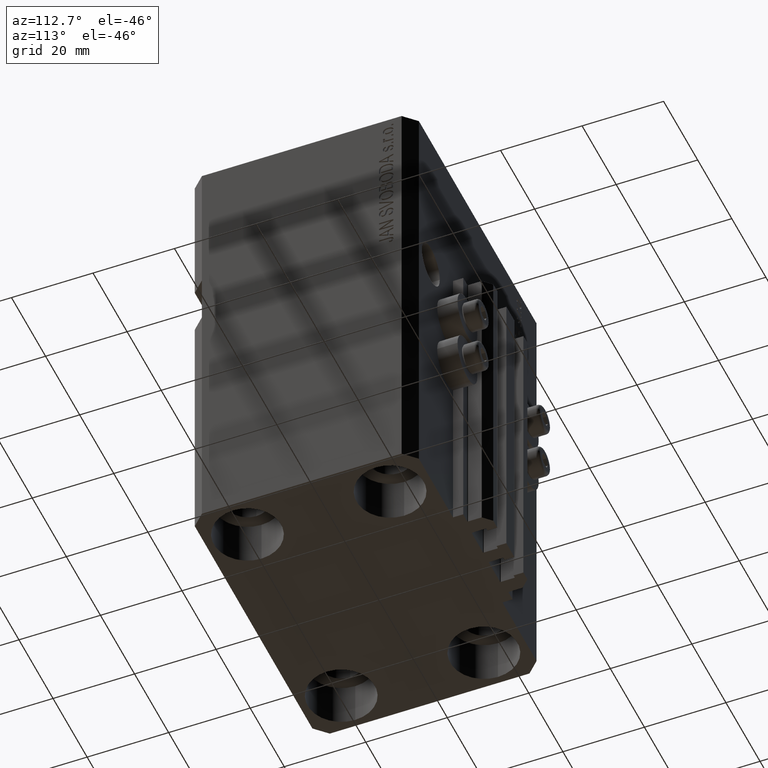
[diagram: clean part render]
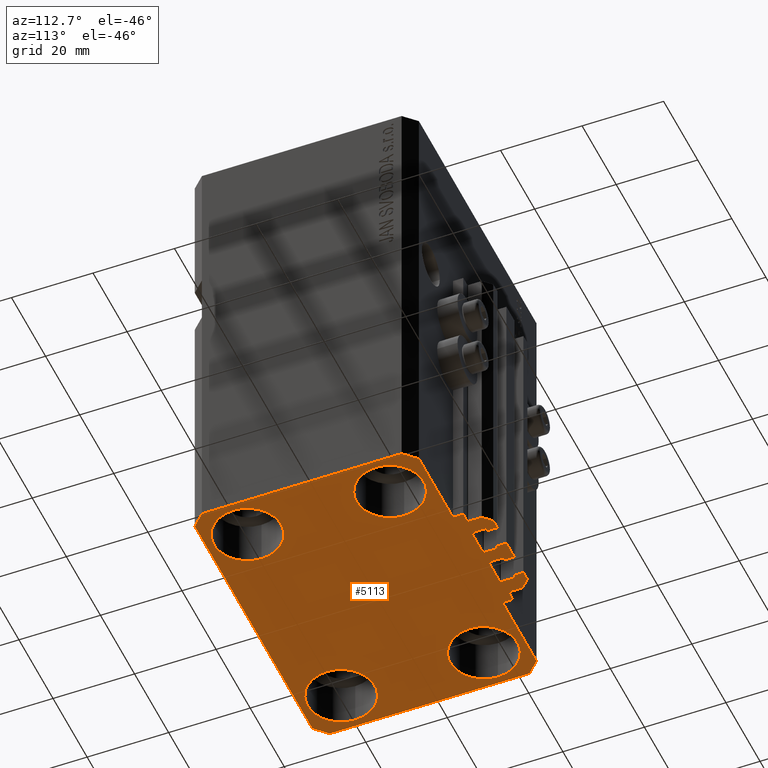
[diagram: same view with one face highlighted and labeled with its STEP entity id]
A machine part, auxiliary view. The second image highlights one B-rep face of the part: STEP entity #5113.
In plain terms, the highlighted planar face has unit normal (0, 0, 1).
Its self-contained STEP definition (entity closure, byte-faithful):
#176 = VECTOR ( 'NONE', #3607, 1000.000000000000000 ) ;
#180 = DIRECTION ( 'NONE',  ( 0.000000000000000000, 0.000000000000000000, 1.000000000000000000 ) ) ;
#183 = EDGE_CURVE ( 'NONE', #14250, #20246, #20913, .T. ) ;
#251 = VERTEX_POINT ( 'NONE', #27939 ) ;
#257 = VERTEX_POINT ( 'NONE', #7116 ) ;
#273 = LINE ( 'NONE', #22485, #43944 ) ;
#282 = DIRECTION ( 'NONE',  ( 0.000000000000000000, 0.000000000000000000, 1.000000000000000000 ) ) ;
#484 = CARTESIAN_POINT ( 'NONE',  ( 8.200000000000001066, 32.90000000000001990, -110.0000000000000000 ) ) ;
#703 = LINE ( 'NONE', #31836, #26669 ) ;
#898 = CARTESIAN_POINT ( 'NONE',  ( 34.50000000000056843, 27.50000000000000000, -110.0000000000000000 ) ) ;
#914 = CARTESIAN_POINT ( 'NONE',  ( 37.50000000000051870, 24.49999999999995381, -110.0000000000000000 ) ) ;
#983 = DIRECTION ( 'NONE',  ( 0.000000000000000000, 0.000000000000000000, 1.000000000000000000 ) ) ;
#1113 = AXIS2_PLACEMENT_3D ( 'NONE', #14033, #20372, #14269 ) ;
#1428 = EDGE_LOOP ( 'NONE', ( #32173, #6984, #32475, #24453, #38293, #30345, #13601, #33989, #5459, #32632, #19243, #2872, #23999, #28841, #43941, #33738, #28150, #46293, #33531, #22088, #12504, #35702, #34096, #33642, #41162, #29534, #10912, #34484, #4089, #33579, #37208, #2524, #23015, #3907, #45671, #44167, #7066, #25585, #15783, #35386, #9589, #7776, #5691, #36114 ) ) ;
#1752 = DIRECTION ( 'NONE',  ( -5.421010862427496532E-16, -1.000000000000000000, 0.000000000000000000 ) ) ;
#1914 = ORIENTED_EDGE ( 'NONE', *, *, #19805, .T. ) ;
#2065 = VERTEX_POINT ( 'NONE', #45881 ) ;
#2075 = EDGE_LOOP ( 'NONE', ( #32900, #17325 ) ) ;
#2281 = CIRCLE ( 'NONE', #10463, 0.2000000000000016209 ) ;
#2307 = CARTESIAN_POINT ( 'NONE',  ( 7.649999999999998579, 33.10000000000001563, -110.0000000000000000 ) ) ;
#2354 = LINE ( 'NONE', #34159, #31041 ) ;
#2364 = VERTEX_POINT ( 'NONE', #18371 ) ;
#2472 = DIRECTION ( 'NONE',  ( 0.000000000000000000, 0.000000000000000000, 1.000000000000000000 ) ) ;
#2494 = CARTESIAN_POINT ( 'NONE',  ( -7.650000000000000355, 33.09999999999999432, -110.0000000000000000 ) ) ;
#2524 = ORIENTED_EDGE ( 'NONE', *, *, #29602, .T. ) ;
#2543 = DIRECTION ( 'NONE',  ( -0.000000000000000000, -0.000000000000000000, 1.000000000000000000 ) ) ;
#2699 = CARTESIAN_POINT ( 'NONE',  ( 12.20000000000000107, 30.20000000000002061, -110.0000000000000000 ) ) ;
#2801 = CARTESIAN_POINT ( 'NONE',  ( -10.00000000000000000, 35.50000000000000000, -110.0000000000000000 ) ) ;
#2872 = ORIENTED_EDGE ( 'NONE', *, *, #24934, .T. ) ;
#3248 = VERTEX_POINT ( 'NONE', #17284 ) ;
#3310 = CIRCLE ( 'NONE', #14488, 8.249999999999992895 ) ;
#3607 = DIRECTION ( 'NONE',  ( 1.000000000000000000, 0.000000000000000000, 0.000000000000000000 ) ) ;
#3829 = CIRCLE ( 'NONE', #19515, 0.2000000000000031197 ) ;
#3907 = ORIENTED_EDGE ( 'NONE', *, *, #19569, .T. ) ;
#3914 = CARTESIAN_POINT ( 'NONE',  ( 12.20000000000000107, 30.00000000000002487, -110.0000000000000000 ) ) ;
#3987 = VERTEX_POINT ( 'NONE', #8670 ) ;
#4016 = VERTEX_POINT ( 'NONE', #24107 ) ;
#4089 = ORIENTED_EDGE ( 'NONE', *, *, #21705, .F. ) ;
#4103 = DIRECTION ( 'NONE',  ( -1.000000000000000000, -1.084202172485504828E-15, 0.000000000000000000 ) ) ;
#4216 = CARTESIAN_POINT ( 'NONE',  ( 35.75000000000000711, -17.50000000000000000, -110.0000000000000000 ) ) ;
#4351 = EDGE_CURVE ( 'NONE', #29172, #16520, #23480, .T. ) ;
#4435 = VECTOR ( 'NONE', #26506, 1000.000000000000000 ) ;
#4685 = DIRECTION ( 'NONE',  ( 0.000000000000000000, 0.000000000000000000, 1.000000000000000000 ) ) ;
#4904 = CARTESIAN_POINT ( 'NONE',  ( 19.25000000000000000, -17.50000000000000000, -110.0000000000000000 ) ) ;
#4983 = CARTESIAN_POINT ( 'NONE',  ( -12.20000000000000107, 29.99999999999998934, -110.0000000000000000 ) ) ;
#5113 = ADVANCED_FACE ( 'NONE', ( #13804, #24806, #17772, #31374, #35332 ), #7024, .F. ) ;
#5228 = CIRCLE ( 'NONE', #24662, 0.2000000000000005107 ) ;
#5379 = CARTESIAN_POINT ( 'NONE',  ( -34.49999999999999289, 27.50000000000000000, -110.0000000000000000 ) ) ;
#5459 = ORIENTED_EDGE ( 'NONE', *, *, #10492, .F. ) ;
#5492 = EDGE_CURVE ( 'NONE', #6683, #9633, #39011, .T. ) ;
#5544 = VECTOR ( 'NONE', #13368, 1000.000000000000000 ) ;
#5571 = CARTESIAN_POINT ( 'NONE',  ( 34.49999999999999289, -27.49999999999999645, -110.0000000000000000 ) ) ;
#5572 = DIRECTION ( 'NONE',  ( 1.000000000000000000, 0.000000000000000000, 0.000000000000000000 ) ) ;
#5675 = AXIS2_PLACEMENT_3D ( 'NONE', #41978, #34734, #24194 ) ;
#5691 = ORIENTED_EDGE ( 'NONE', *, *, #8085, .F. ) ;
#5836 = VERTEX_POINT ( 'NONE', #2494 ) ;
#5956 = CARTESIAN_POINT ( 'NONE',  ( -12.00000000000000000, 33.49999999999998579, -110.0000000000000000 ) ) ;
#5963 = CARTESIAN_POINT ( 'NONE',  ( -14.50000000000000000, 27.50000000000000355, -110.0000000000000000 ) ) ;
#5973 = DIRECTION ( 'NONE',  ( 1.000000000000000000, 0.000000000000000000, 0.000000000000000000 ) ) ;
#6028 = EDGE_CURVE ( 'NONE', #37986, #9523, #21307, .T. ) ;
#6158 = DIRECTION ( 'NONE',  ( 1.000000000000000000, 1.261617073437673039E-14, 0.000000000000000000 ) ) ;
#6391 = EDGE_CURVE ( 'NONE', #5836, #33766, #41383, .T. ) ;
#6566 = VECTOR ( 'NONE', #14416, 1000.000000000000000 ) ;
#6659 = EDGE_CURVE ( 'NONE', #20246, #31176, #45079, .T. ) ;
#6683 = VERTEX_POINT ( 'NONE', #19795 ) ;
#6796 = CARTESIAN_POINT ( 'NONE',  ( 8.199999999999999289, 29.50000000000000711, -110.0000000000000000 ) ) ;
#6808 = CARTESIAN_POINT ( 'NONE',  ( -1.600000000000000533, 32.90000000000001279, -110.0000000000000000 ) ) ;
#6895 = EDGE_CURVE ( 'NONE', #19889, #16447, #13624, .T. ) ;
#6977 = AXIS2_PLACEMENT_3D ( 'NONE', #39376, #21601, #43115 ) ;
#6984 = ORIENTED_EDGE ( 'NONE', *, *, #28135, .F. ) ;
#7024 = PLANE ( 'NONE',  #1113 ) ;
#7066 = ORIENTED_EDGE ( 'NONE', *, *, #21090, .F. ) ;
#7116 = CARTESIAN_POINT ( 'NONE',  ( -12.20000000000000107, 29.99999999999998934, -110.0000000000000000 ) ) ;
#7182 = DIRECTION ( 'NONE',  ( -1.000000000000000000, 0.000000000000000000, 0.000000000000000000 ) ) ;
#7776 = ORIENTED_EDGE ( 'NONE', *, *, #24505, .T. ) ;
#7879 = EDGE_CURVE ( 'NONE', #9523, #37986, #24461, .T. ) ;
#8028 = CARTESIAN_POINT ( 'NONE',  ( 1.800000000000000933, 29.50000000000000000, -110.0000000000000000 ) ) ;
#8085 = EDGE_CURVE ( 'NONE', #8854, #33024, #8814, .T. ) ;
#8472 = LINE ( 'NONE', #33751, #38333 ) ;
#8631 = DIRECTION ( 'NONE',  ( 0.000000000000000000, 1.000000000000000000, 0.000000000000000000 ) ) ;
#8670 = CARTESIAN_POINT ( 'NONE',  ( -8.399999999999996803, 29.69999999999999929, -110.0000000000000000 ) ) ;
#8688 = EDGE_CURVE ( 'NONE', #44055, #8854, #8472, .T. ) ;
#8696 = VECTOR ( 'NONE', #44709, 1000.000000000000000 ) ;
#8749 = CARTESIAN_POINT ( 'NONE',  ( 8.400000000000000355, 32.90000000000001990, -110.0000000000000000 ) ) ;
#8814 = LINE ( 'NONE', #37364, #21134 ) ;
#8854 = VERTEX_POINT ( 'NONE', #25747 ) ;
#9044 = CARTESIAN_POINT ( 'NONE',  ( 34.49999999999999289, -27.49999999999999645, -110.0000000000000000 ) ) ;
#9185 = LINE ( 'NONE', #23464, #40135 ) ;
#9523 = VERTEX_POINT ( 'NONE', #15963 ) ;
#9540 = AXIS2_PLACEMENT_3D ( 'NONE', #29060, #983, #39120 ) ;
#9576 = CARTESIAN_POINT ( 'NONE',  ( 27.49999999999999645, 17.50000000000001066, -110.0000000000000000 ) ) ;
#9589 = ORIENTED_EDGE ( 'NONE', *, *, #19109, .F. ) ;
#9633 = VERTEX_POINT ( 'NONE', #13150 ) ;
#9689 = LINE ( 'NONE', #5956, #23734 ) ;
#9794 = ORIENTED_EDGE ( 'NONE', *, *, #6028, .T. ) ;
#9984 = CARTESIAN_POINT ( 'NONE',  ( 12.00000000000000178, 30.20000000000002061, -110.0000000000000000 ) ) ;
#10230 = VECTOR ( 'NONE', #36407, 1000.000000000000000 ) ;
#10235 = CIRCLE ( 'NONE', #5675, 8.250000000000000000 ) ;
#10255 = EDGE_CURVE ( 'NONE', #16520, #29172, #27156, .T. ) ;
#10329 = AXIS2_PLACEMENT_3D ( 'NONE', #21568, #282, #5572 ) ;
#10463 = AXIS2_PLACEMENT_3D ( 'NONE', #42649, #13641, #46165 ) ;
#10492 = EDGE_CURVE ( 'NONE', #31876, #14197, #42829, .T. ) ;
#10510 = DIRECTION ( 'NONE',  ( -0.7071067811865471286, -0.7071067811865479058, 0.000000000000000000 ) ) ;
#10570 = VERTEX_POINT ( 'NONE', #18481 ) ;
#10604 = EDGE_CURVE ( 'NONE', #44377, #27275, #25524, .T. ) ;
#10612 = EDGE_CURVE ( 'NONE', #10570, #3248, #27951, .T. ) ;
#10617 = EDGE_CURVE ( 'NONE', #16930, #5836, #29263, .T. ) ;
#10668 = EDGE_CURVE ( 'NONE', #25658, #4016, #3310, .T. ) ;
#10912 = ORIENTED_EDGE ( 'NONE', *, *, #38690, .T. ) ;
#10951 = VERTEX_POINT ( 'NONE', #44627 ) ;
#11164 = CARTESIAN_POINT ( 'NONE',  ( -8.199999999999997513, 33.09999999999998721, -110.0000000000000000 ) ) ;
#11316 = CARTESIAN_POINT ( 'NONE',  ( 14.49999999999999645, 27.50000000000000355, -110.0000000000000000 ) ) ;
#11374 = CARTESIAN_POINT ( 'NONE',  ( -7.650000000000000355, 35.50000000000000000, -110.0000000000000000 ) ) ;
#11469 = DIRECTION ( 'NONE',  ( 0.000000000000000000, -1.000000000000000000, 0.000000000000000000 ) ) ;
#11601 = VERTEX_POINT ( 'NONE', #2801 ) ;
#12314 = VECTOR ( 'NONE', #24281, 1000.000000000000000 ) ;
#12504 = ORIENTED_EDGE ( 'NONE', *, *, #14252, .F. ) ;
#12626 = CARTESIAN_POINT ( 'NONE',  ( -34.49999999999998579, -27.49999999999999645, -110.0000000000000000 ) ) ;
#12804 = EDGE_CURVE ( 'NONE', #33477, #18635, #19282, .T. ) ;
#13039 = DIRECTION ( 'NONE',  ( -5.256737805990334897E-16, 1.000000000000000000, 0.000000000000000000 ) ) ;
#13150 = CARTESIAN_POINT ( 'NONE',  ( 1.600000000000000533, 32.90000000000001279, -110.0000000000000000 ) ) ;
#13317 = CIRCLE ( 'NONE', #10329, 0.2000000000000005107 ) ;
#13368 = DIRECTION ( 'NONE',  ( -1.000000000000000000, 0.000000000000000000, 0.000000000000000000 ) ) ;
#13601 = ORIENTED_EDGE ( 'NONE', *, *, #10604, .F. ) ;
#13624 = LINE ( 'NONE', #13851, #39134 ) ;
#13641 = DIRECTION ( 'NONE',  ( 0.000000000000000000, 0.000000000000000000, 1.000000000000000000 ) ) ;
#13804 = FACE_BOUND ( 'NONE', #39448, .T. ) ;
#13851 = CARTESIAN_POINT ( 'NONE',  ( -2.350000000000003197, 33.10000000000000853, -110.0000000000000000 ) ) ;
#13968 = DIRECTION ( 'NONE',  ( 0.000000000000000000, 0.000000000000000000, 1.000000000000000000 ) ) ;
#14020 = LINE ( 'NONE', #42566, #38620 ) ;
#14033 = CARTESIAN_POINT ( 'NONE',  ( 0.000000000000000000, 0.000000000000000000, -110.0000000000000000 ) ) ;
#14067 = DIRECTION ( 'NONE',  ( -1.084202172485505223E-15, 1.000000000000000000, 0.000000000000000000 ) ) ;
#14197 = VERTEX_POINT ( 'NONE', #5379 ) ;
#14250 = VERTEX_POINT ( 'NONE', #12626 ) ;
#14252 = EDGE_CURVE ( 'NONE', #44202, #33964, #2354, .T. ) ;
#14269 = DIRECTION ( 'NONE',  ( 1.000000000000000000, 0.000000000000000000, -0.000000000000000000 ) ) ;
#14416 = DIRECTION ( 'NONE',  ( 0.000000000000000000, 1.000000000000000000, 0.000000000000000000 ) ) ;
#14433 = CARTESIAN_POINT ( 'NONE',  ( -8.199999999999997513, 32.89999999999999147, -110.0000000000000000 ) ) ;
#14474 = VERTEX_POINT ( 'NONE', #898 ) ;
#14488 = AXIS2_PLACEMENT_3D ( 'NONE', #9576, #19631, #27128 ) ;
#14502 = DIRECTION ( 'NONE',  ( -1.000000000000000000, 0.000000000000000000, 0.000000000000000000 ) ) ;
#14677 = CARTESIAN_POINT ( 'NONE',  ( -27.50000000000000355, -17.50000000000000000, -110.0000000000000000 ) ) ;
#14826 = ORIENTED_EDGE ( 'NONE', *, *, #10668, .T. ) ;
#14959 = DIRECTION ( 'NONE',  ( 1.076236605503979380E-14, 1.000000000000000000, 0.000000000000000000 ) ) ;
#14976 = DIRECTION ( 'NONE',  ( 0.000000000000000000, 0.000000000000000000, 1.000000000000000000 ) ) ;
#15071 = DIRECTION ( 'NONE',  ( 1.000000000000000000, 0.000000000000000000, 0.000000000000000000 ) ) ;
#15574 = EDGE_CURVE ( 'NONE', #26339, #19889, #38380, .T. ) ;
#15783 = ORIENTED_EDGE ( 'NONE', *, *, #20752, .F. ) ;
#15963 = CARTESIAN_POINT ( 'NONE',  ( -19.25000000000000355, -17.50000000000000000, -110.0000000000000000 ) ) ;
#16064 = DIRECTION ( 'NONE',  ( 0.7071067811865474617, 0.7071067811865474617, 0.000000000000000000 ) ) ;
#16277 = CARTESIAN_POINT ( 'NONE',  ( 7.649999999999998579, 35.50000000000001421, -110.0000000000000000 ) ) ;
#16427 = EDGE_CURVE ( 'NONE', #42382, #9633, #39332, .T. ) ;
#16447 = VERTEX_POINT ( 'NONE', #24815 ) ;
#16520 = VERTEX_POINT ( 'NONE', #4904 ) ;
#16798 = AXIS2_PLACEMENT_3D ( 'NONE', #37521, #26535, #43857 ) ;
#16930 = VERTEX_POINT ( 'NONE', #11164 ) ;
#17208 = EDGE_LOOP ( 'NONE', ( #27542, #14826 ) ) ;
#17284 = CARTESIAN_POINT ( 'NONE',  ( 8.200000000000001066, 33.10000000000000853, -110.0000000000000000 ) ) ;
#17325 = ORIENTED_EDGE ( 'NONE', *, *, #4351, .T. ) ;
#17570 = LINE ( 'NONE', #31860, #20625 ) ;
#17685 = VECTOR ( 'NONE', #35348, 1000.000000000000000 ) ;
#17686 = EDGE_CURVE ( 'NONE', #2364, #34649, #24585, .T. ) ;
#17772 = FACE_BOUND ( 'NONE', #17208, .T. ) ;
#17952 = LINE ( 'NONE', #18182, #20885 ) ;
#17991 = CARTESIAN_POINT ( 'NONE',  ( -8.400000000000000355, 32.89999999999999858, -110.0000000000000000 ) ) ;
#18182 = CARTESIAN_POINT ( 'NONE',  ( -37.49999999999999289, -24.50000000000000000, -110.0000000000000000 ) ) ;
#18220 = VECTOR ( 'NONE', #16064, 1000.000000000000114 ) ;
#18371 = CARTESIAN_POINT ( 'NONE',  ( -1.599999999999997868, 32.90000000000001279, -110.0000000000000000 ) ) ;
#18386 = LINE ( 'NONE', #39688, #10230 ) ;
#18481 = CARTESIAN_POINT ( 'NONE',  ( 8.399999999999998579, 32.90000000000001990, -110.0000000000000000 ) ) ;
#18497 = EDGE_CURVE ( 'NONE', #32039, #251, #10235, .T. ) ;
#18635 = VERTEX_POINT ( 'NONE', #8028 ) ;
#18717 = DIRECTION ( 'NONE',  ( 0.000000000000000000, -1.000000000000000000, 0.000000000000000000 ) ) ;
#18858 = EDGE_CURVE ( 'NONE', #11601, #38003, #45212, .T. ) ;
#18955 = EDGE_CURVE ( 'NONE', #3987, #35815, #17570, .T. ) ;
#19109 = EDGE_CURVE ( 'NONE', #10951, #28803, #34570, .T. ) ;
#19243 = ORIENTED_EDGE ( 'NONE', *, *, #42785, .F. ) ;
#19282 = LINE ( 'NONE', #36147, #39972 ) ;
#19515 = AXIS2_PLACEMENT_3D ( 'NONE', #43845, #13968, #15071 ) ;
#19569 = EDGE_CURVE ( 'NONE', #33477, #20970, #39299, .T. ) ;
#19625 = CARTESIAN_POINT ( 'NONE',  ( -14.50000000000000000, 29.99999999999999289, -110.0000000000000000 ) ) ;
#19631 = DIRECTION ( 'NONE',  ( -0.000000000000000000, -0.000000000000000000, 1.000000000000000000 ) ) ;
#19795 = CARTESIAN_POINT ( 'NONE',  ( 1.599999999999999645, 29.69999999999999929, -110.0000000000000000 ) ) ;
#19805 = EDGE_CURVE ( 'NONE', #251, #32039, #27351, .T. ) ;
#19848 = CARTESIAN_POINT ( 'NONE',  ( -7.650000000000000355, 35.50000000000000000, -110.0000000000000000 ) ) ;
#19889 = VERTEX_POINT ( 'NONE', #23872 ) ;
#20122 = VERTEX_POINT ( 'NONE', #914 ) ;
#20246 = VERTEX_POINT ( 'NONE', #5571 ) ;
#20372 = DIRECTION ( 'NONE',  ( 0.000000000000000000, 0.000000000000000000, 1.000000000000000000 ) ) ;
#20625 = VECTOR ( 'NONE', #14067, 1000.000000000000000 ) ;
#20678 = CARTESIAN_POINT ( 'NONE',  ( -34.49999999999998579, -27.49999999999999645, -110.0000000000000000 ) ) ;
#20752 = EDGE_CURVE ( 'NONE', #38761, #44914, #31365, .T. ) ;
#20835 = DIRECTION ( 'NONE',  ( 0.000000000000000000, 0.000000000000000000, 1.000000000000000000 ) ) ;
#20853 = VECTOR ( 'NONE', #14959, 1000.000000000000000 ) ;
#20885 = VECTOR ( 'NONE', #40407, 1000.000000000000000 ) ;
#20913 = LINE ( 'NONE', #20678, #176 ) ;
#20932 = CARTESIAN_POINT ( 'NONE',  ( 2.349999999999999645, 35.50000000000001421, -110.0000000000000000 ) ) ;
#20970 = VERTEX_POINT ( 'NONE', #29680 ) ;
#21068 = DIRECTION ( 'NONE',  ( 1.000000000000000000, 0.000000000000000000, 0.000000000000000000 ) ) ;
#21090 = EDGE_CURVE ( 'NONE', #21353, #3248, #38075, .T. ) ;
#21134 = VECTOR ( 'NONE', #23554, 1000.000000000000000 ) ;
#21205 = VECTOR ( 'NONE', #22697, 1000.000000000000000 ) ;
#21207 = EDGE_CURVE ( 'NONE', #44914, #21353, #18386, .T. ) ;
#21307 = CIRCLE ( 'NONE', #16798, 8.250000000000000000 ) ;
#21353 = VERTEX_POINT ( 'NONE', #43896 ) ;
#21500 = CIRCLE ( 'NONE', #43172, 8.249999999999992895 ) ;
#21568 = CARTESIAN_POINT ( 'NONE',  ( -12.20000000000000107, 30.19999999999999218, -110.0000000000000000 ) ) ;
#21601 = DIRECTION ( 'NONE',  ( -0.000000000000000000, -0.000000000000000000, 1.000000000000000000 ) ) ;
#21705 = EDGE_CURVE ( 'NONE', #42382, #2065, #9185, .T. ) ;
#22088 = ORIENTED_EDGE ( 'NONE', *, *, #22616, .T. ) ;
#22091 = EDGE_CURVE ( 'NONE', #14197, #44377, #14020, .T. ) ;
#22172 = DIRECTION ( 'NONE',  ( 1.000000000000000000, 0.000000000000000000, 0.000000000000000000 ) ) ;
#22188 = ORIENTED_EDGE ( 'NONE', *, *, #18497, .T. ) ;
#22232 = VECTOR ( 'NONE', #38451, 1000.000000000000000 ) ;
#22485 = CARTESIAN_POINT ( 'NONE',  ( -14.50000000000000000, 29.99999999999999289, -110.0000000000000000 ) ) ;
#22616 = EDGE_CURVE ( 'NONE', #3987, #33964, #43141, .T. ) ;
#22697 = DIRECTION ( 'NONE',  ( 1.000000000000000000, 1.261617073437685503E-14, 0.000000000000000000 ) ) ;
#23001 = DIRECTION ( 'NONE',  ( 0.000000000000000000, 0.000000000000000000, 1.000000000000000000 ) ) ;
#23015 = ORIENTED_EDGE ( 'NONE', *, *, #12804, .F. ) ;
#23307 = EDGE_CURVE ( 'NONE', #4016, #25658, #21500, .T. ) ;
#23464 = CARTESIAN_POINT ( 'NONE',  ( 1.800000000000000933, 33.10000000000001563, -110.0000000000000000 ) ) ;
#23480 = CIRCLE ( 'NONE', #42878, 8.250000000000000000 ) ;
#23554 = DIRECTION ( 'NONE',  ( -1.000000000000000000, 0.000000000000000000, 0.000000000000000000 ) ) ;
#23734 = VECTOR ( 'NONE', #33578, 1000.000000000000000 ) ;
#23768 = EDGE_CURVE ( 'NONE', #28888, #31876, #273, .T. ) ;
#23872 = CARTESIAN_POINT ( 'NONE',  ( -2.350000000000003197, 33.10000000000000853, -110.0000000000000000 ) ) ;
#23940 = VECTOR ( 'NONE', #7182, 1000.000000000000000 ) ;
#23999 = ORIENTED_EDGE ( 'NONE', *, *, #39947, .F. ) ;
#24107 = CARTESIAN_POINT ( 'NONE',  ( 19.25000000000000000, 17.50000000000001066, -110.0000000000000000 ) ) ;
#24194 = DIRECTION ( 'NONE',  ( 1.000000000000000000, 0.000000000000000000, 0.000000000000000000 ) ) ;
#24208 = EDGE_CURVE ( 'NONE', #2065, #26463, #32212, .T. ) ;
#24281 = DIRECTION ( 'NONE',  ( 0.000000000000000000, 1.000000000000000000, 0.000000000000000000 ) ) ;
#24301 = CARTESIAN_POINT ( 'NONE',  ( 37.49999999999999289, -24.50000000000000000, -110.0000000000000000 ) ) ;
#24340 = DIRECTION ( 'NONE',  ( 1.807003620809174632E-16, -1.000000000000000000, 0.000000000000000000 ) ) ;
#24453 = ORIENTED_EDGE ( 'NONE', *, *, #6659, .F. ) ;
#24461 = CIRCLE ( 'NONE', #30464, 8.250000000000000000 ) ;
#24505 = EDGE_CURVE ( 'NONE', #10951, #33024, #26775, .T. ) ;
#24575 = CARTESIAN_POINT ( 'NONE',  ( -2.350000000000003642, 35.50000000000001421, -110.0000000000000000 ) ) ;
#24585 = LINE ( 'NONE', #6808, #17685 ) ;
#24662 = AXIS2_PLACEMENT_3D ( 'NONE', #14433, #180, #35966 ) ;
#24793 = ORIENTED_EDGE ( 'NONE', *, *, #7879, .T. ) ;
#24806 = FACE_BOUND ( 'NONE', #2075, .T. ) ;
#24815 = CARTESIAN_POINT ( 'NONE',  ( -1.800000000000000933, 33.10000000000001563, -110.0000000000000000 ) ) ;
#24934 = EDGE_CURVE ( 'NONE', #257, #41621, #13317, .T. ) ;
#25060 = CARTESIAN_POINT ( 'NONE',  ( 34.50000000000056843, 27.50000000000000000, -110.0000000000000000 ) ) ;
#25414 = VECTOR ( 'NONE', #1752, 1000.000000000000000 ) ;
#25457 = DIRECTION ( 'NONE',  ( -0.000000000000000000, -0.000000000000000000, 1.000000000000000000 ) ) ;
#25524 = LINE ( 'NONE', #36500, #31702 ) ;
#25585 = ORIENTED_EDGE ( 'NONE', *, *, #21207, .F. ) ;
#25654 = CARTESIAN_POINT ( 'NONE',  ( 2.349999999999999645, 33.10000000000000853, -110.0000000000000000 ) ) ;
#25658 = VERTEX_POINT ( 'NONE', #28423 ) ;
#25747 = CARTESIAN_POINT ( 'NONE',  ( 14.49999999999999645, 30.00000000000002487, -110.0000000000000000 ) ) ;
#25851 = VECTOR ( 'NONE', #24340, 1000.000000000000000 ) ;
#25913 = VECTOR ( 'NONE', #37848, 1000.000000000000000 ) ;
#25942 = AXIS2_PLACEMENT_3D ( 'NONE', #36730, #4685, #44674 ) ;
#26339 = VERTEX_POINT ( 'NONE', #30314 ) ;
#26378 = LINE ( 'NONE', #29888, #34371 ) ;
#26463 = VERTEX_POINT ( 'NONE', #20932 ) ;
#26506 = DIRECTION ( 'NONE',  ( -1.000000000000000000, 1.508455196501571429E-15, 0.000000000000000000 ) ) ;
#26524 = VECTOR ( 'NONE', #8631, 1000.000000000000000 ) ;
#26535 = DIRECTION ( 'NONE',  ( -0.000000000000000000, -0.000000000000000000, 1.000000000000000000 ) ) ;
#26543 = CARTESIAN_POINT ( 'NONE',  ( -35.75000000000000711, -17.50000000000000000, -110.0000000000000000 ) ) ;
#26609 = AXIS2_PLACEMENT_3D ( 'NONE', #41415, #33943, #34635 ) ;
#26669 = VECTOR ( 'NONE', #14502, 1000.000000000000000 ) ;
#26767 = VECTOR ( 'NONE', #35709, 1000.000000000000114 ) ;
#26775 = CIRCLE ( 'NONE', #29789, 0.1999999999999987899 ) ;
#27039 = EDGE_CURVE ( 'NONE', #31176, #20122, #32988, .T. ) ;
#27128 = DIRECTION ( 'NONE',  ( 1.000000000000000000, 0.000000000000000000, 0.000000000000000000 ) ) ;
#27156 = CIRCLE ( 'NONE', #6977, 8.250000000000000000 ) ;
#27275 = VERTEX_POINT ( 'NONE', #36195 ) ;
#27351 = CIRCLE ( 'NONE', #26609, 8.250000000000000000 ) ;
#27542 = ORIENTED_EDGE ( 'NONE', *, *, #23307, .T. ) ;
#27840 = CARTESIAN_POINT ( 'NONE',  ( 9.999999999999998224, 35.50000000000001421, -110.0000000000000000 ) ) ;
#27939 = CARTESIAN_POINT ( 'NONE',  ( -35.75000000000000711, 17.50000000000000000, -110.0000000000000000 ) ) ;
#27951 = CIRCLE ( 'NONE', #36902, 0.1999999999999970690 ) ;
#27996 = CARTESIAN_POINT ( 'NONE',  ( 12.00000000000000000, 33.50000000000001421, -110.0000000000000000 ) ) ;
#28015 = EDGE_CURVE ( 'NONE', #27275, #14250, #17952, .T. ) ;
#28135 = EDGE_CURVE ( 'NONE', #20122, #14474, #26378, .T. ) ;
#28150 = ORIENTED_EDGE ( 'NONE', *, *, #10617, .F. ) ;
#28423 = CARTESIAN_POINT ( 'NONE',  ( 35.74999999999999289, 17.50000000000001066, -110.0000000000000000 ) ) ;
#28803 = VERTEX_POINT ( 'NONE', #35632 ) ;
#28841 = ORIENTED_EDGE ( 'NONE', *, *, #18858, .F. ) ;
#28888 = VERTEX_POINT ( 'NONE', #19625 ) ;
#29060 = CARTESIAN_POINT ( 'NONE',  ( -8.199999999999997513, 29.69999999999999929, -110.0000000000000000 ) ) ;
#29172 = VERTEX_POINT ( 'NONE', #4216 ) ;
#29263 = LINE ( 'NONE', #33005, #21205 ) ;
#29369 = CARTESIAN_POINT ( 'NONE',  ( -12.00000000000000000, 33.49999999999998579, -110.0000000000000000 ) ) ;
#29409 = DIRECTION ( 'NONE',  ( 1.000000000000000000, 0.000000000000000000, 0.000000000000000000 ) ) ;
#29534 = ORIENTED_EDGE ( 'NONE', *, *, #15574, .F. ) ;
#29538 = EDGE_CURVE ( 'NONE', #10570, #20970, #33796, .T. ) ;
#29602 = EDGE_CURVE ( 'NONE', #6683, #18635, #2281, .T. ) ;
#29680 = CARTESIAN_POINT ( 'NONE',  ( 8.400000000000000355, 29.70000000000000284, -110.0000000000000000 ) ) ;
#29789 = AXIS2_PLACEMENT_3D ( 'NONE', #2699, #2472, #5973 ) ;
#29888 = CARTESIAN_POINT ( 'NONE',  ( 37.50000000000051870, 24.49999999999995381, -110.0000000000000000 ) ) ;
#30265 = CARTESIAN_POINT ( 'NONE',  ( 8.199999999999999289, 29.70000000000000284, -110.0000000000000000 ) ) ;
#30314 = CARTESIAN_POINT ( 'NONE',  ( -2.350000000000003642, 35.50000000000001421, -110.0000000000000000 ) ) ;
#30345 = ORIENTED_EDGE ( 'NONE', *, *, #28015, .F. ) ;
#30464 = AXIS2_PLACEMENT_3D ( 'NONE', #14677, #25457, #22172 ) ;
#31041 = VECTOR ( 'NONE', #41634, 1000.000000000000000 ) ;
#31096 = CARTESIAN_POINT ( 'NONE',  ( 1.600000000000000533, 29.69999999999999929, -110.0000000000000000 ) ) ;
#31176 = VERTEX_POINT ( 'NONE', #24301 ) ;
#31365 = LINE ( 'NONE', #27840, #8696 ) ;
#31374 = FACE_BOUND ( 'NONE', #41955, .T. ) ;
#31415 = DIRECTION ( 'NONE',  ( 1.000000000000000000, -1.261617073437681085E-14, 0.000000000000000000 ) ) ;
#31702 = VECTOR ( 'NONE', #18717, 1000.000000000000000 ) ;
#31828 = VECTOR ( 'NONE', #40995, 1000.000000000000227 ) ;
#31836 = CARTESIAN_POINT ( 'NONE',  ( 34.50000000000056843, 27.50000000000000000, -110.0000000000000000 ) ) ;
#31860 = CARTESIAN_POINT ( 'NONE',  ( -8.399999999999996803, 29.69999999999999929, -110.0000000000000000 ) ) ;
#31876 = VERTEX_POINT ( 'NONE', #5963 ) ;
#32039 = VERTEX_POINT ( 'NONE', #36471 ) ;
#32071 = CARTESIAN_POINT ( 'NONE',  ( 1.800000000000000933, 32.90000000000001279, -110.0000000000000000 ) ) ;
#32173 = ORIENTED_EDGE ( 'NONE', *, *, #37153, .F. ) ;
#32212 = LINE ( 'NONE', #25654, #6566 ) ;
#32228 = EDGE_CURVE ( 'NONE', #2364, #16447, #3829, .T. ) ;
#32475 = ORIENTED_EDGE ( 'NONE', *, *, #27039, .F. ) ;
#32632 = ORIENTED_EDGE ( 'NONE', *, *, #23768, .F. ) ;
#32900 = ORIENTED_EDGE ( 'NONE', *, *, #10255, .T. ) ;
#32988 = LINE ( 'NONE', #39536, #20853 ) ;
#33005 = CARTESIAN_POINT ( 'NONE',  ( -8.199999999999997513, 33.09999999999998721, -110.0000000000000000 ) ) ;
#33012 = EDGE_CURVE ( 'NONE', #16930, #35815, #5228, .T. ) ;
#33024 = VERTEX_POINT ( 'NONE', #3914 ) ;
#33150 = DIRECTION ( 'NONE',  ( -0.000000000000000000, -0.000000000000000000, 1.000000000000000000 ) ) ;
#33477 = VERTEX_POINT ( 'NONE', #6796 ) ;
#33531 = ORIENTED_EDGE ( 'NONE', *, *, #18955, .F. ) ;
#33578 = DIRECTION ( 'NONE',  ( 0.000000000000000000, -1.000000000000000000, 0.000000000000000000 ) ) ;
#33579 = ORIENTED_EDGE ( 'NONE', *, *, #16427, .T. ) ;
#33642 = ORIENTED_EDGE ( 'NONE', *, *, #32228, .T. ) ;
#33738 = ORIENTED_EDGE ( 'NONE', *, *, #6391, .F. ) ;
#33751 = CARTESIAN_POINT ( 'NONE',  ( 14.49999999999999645, 27.50000000000000355, -110.0000000000000000 ) ) ;
#33766 = VERTEX_POINT ( 'NONE', #19848 ) ;
#33796 = LINE ( 'NONE', #8749, #25414 ) ;
#33943 = DIRECTION ( 'NONE',  ( -0.000000000000000000, -0.000000000000000000, 1.000000000000000000 ) ) ;
#33964 = VERTEX_POINT ( 'NONE', #38550 ) ;
#33989 = ORIENTED_EDGE ( 'NONE', *, *, #22091, .F. ) ;
#34096 = ORIENTED_EDGE ( 'NONE', *, *, #17686, .F. ) ;
#34159 = CARTESIAN_POINT ( 'NONE',  ( -1.800000000000000933, 29.50000000000000355, -110.0000000000000000 ) ) ;
#34371 = VECTOR ( 'NONE', #37582, 1000.000000000000114 ) ;
#34484 = ORIENTED_EDGE ( 'NONE', *, *, #24208, .F. ) ;
#34570 = LINE ( 'NONE', #9984, #37833 ) ;
#34635 = DIRECTION ( 'NONE',  ( 1.000000000000000000, 0.000000000000000000, 0.000000000000000000 ) ) ;
#34649 = VERTEX_POINT ( 'NONE', #41212 ) ;
#34734 = DIRECTION ( 'NONE',  ( -0.000000000000000000, -0.000000000000000000, 1.000000000000000000 ) ) ;
#35332 = FACE_OUTER_BOUND ( 'NONE', #1428, .T. ) ;
#35348 = DIRECTION ( 'NONE',  ( -6.776263578034378061E-17, -1.000000000000000000, 0.000000000000000000 ) ) ;
#35386 = ORIENTED_EDGE ( 'NONE', *, *, #40615, .F. ) ;
#35632 = CARTESIAN_POINT ( 'NONE',  ( 12.00000000000000000, 33.50000000000001421, -110.0000000000000000 ) ) ;
#35702 = ORIENTED_EDGE ( 'NONE', *, *, #38235, .T. ) ;
#35709 = DIRECTION ( 'NONE',  ( -0.7071067811865474617, 0.7071067811865474617, 0.000000000000000000 ) ) ;
#35815 = VERTEX_POINT ( 'NONE', #17991 ) ;
#35897 = CARTESIAN_POINT ( 'NONE',  ( -12.00000000000000000, 30.19999999999999218, -110.0000000000000000 ) ) ;
#35966 = DIRECTION ( 'NONE',  ( 1.000000000000000000, 0.000000000000000000, 0.000000000000000000 ) ) ;
#36040 = DIRECTION ( 'NONE',  ( 1.000000000000000000, 0.000000000000000000, 0.000000000000000000 ) ) ;
#36114 = ORIENTED_EDGE ( 'NONE', *, *, #8688, .F. ) ;
#36147 = CARTESIAN_POINT ( 'NONE',  ( 8.199999999999999289, 29.50000000000000711, -110.0000000000000000 ) ) ;
#36195 = CARTESIAN_POINT ( 'NONE',  ( -37.49999999999999289, -24.50000000000000000, -110.0000000000000000 ) ) ;
#36407 = DIRECTION ( 'NONE',  ( 0.000000000000000000, -1.000000000000000000, 0.000000000000000000 ) ) ;
#36471 = CARTESIAN_POINT ( 'NONE',  ( -19.25000000000000355, 17.50000000000000000, -110.0000000000000000 ) ) ;
#36500 = CARTESIAN_POINT ( 'NONE',  ( -37.49999999999999289, 24.50000000000000000, -110.0000000000000000 ) ) ;
#36730 = CARTESIAN_POINT ( 'NONE',  ( -1.800000000000000933, 29.69999999999999929, -110.0000000000000000 ) ) ;
#36902 = AXIS2_PLACEMENT_3D ( 'NONE', #484, #14976, #36040 ) ;
#37153 = EDGE_CURVE ( 'NONE', #14474, #44055, #703, .T. ) ;
#37208 = ORIENTED_EDGE ( 'NONE', *, *, #5492, .F. ) ;
#37268 = DIRECTION ( 'NONE',  ( 1.000000000000000000, 0.000000000000000000, 0.000000000000000000 ) ) ;
#37364 = CARTESIAN_POINT ( 'NONE',  ( 14.49999999999999645, 30.00000000000002487, -110.0000000000000000 ) ) ;
#37411 = CARTESIAN_POINT ( 'NONE',  ( -7.650000000000000355, 33.09999999999999432, -110.0000000000000000 ) ) ;
#37521 = CARTESIAN_POINT ( 'NONE',  ( -27.50000000000000355, -17.50000000000000000, -110.0000000000000000 ) ) ;
#37582 = DIRECTION ( 'NONE',  ( -0.7071067811865356934, 0.7071067811865594521, 0.000000000000000000 ) ) ;
#37709 = DIRECTION ( 'NONE',  ( 0.000000000000000000, 1.000000000000000000, 0.000000000000000000 ) ) ;
#37833 = VECTOR ( 'NONE', #13039, 1000.000000000000000 ) ;
#37848 = DIRECTION ( 'NONE',  ( 1.000000000000000000, -1.261617073437673828E-14, 0.000000000000000000 ) ) ;
#37986 = VERTEX_POINT ( 'NONE', #26543 ) ;
#38003 = VERTEX_POINT ( 'NONE', #29369 ) ;
#38075 = LINE ( 'NONE', #2307, #25913 ) ;
#38234 = CARTESIAN_POINT ( 'NONE',  ( -2.350000000000003642, 35.50000000000001421, -110.0000000000000000 ) ) ;
#38235 = EDGE_CURVE ( 'NONE', #44202, #34649, #46108, .T. ) ;
#38293 = ORIENTED_EDGE ( 'NONE', *, *, #183, .F. ) ;
#38333 = VECTOR ( 'NONE', #37709, 1000.000000000000000 ) ;
#38380 = LINE ( 'NONE', #24575, #25851 ) ;
#38451 = DIRECTION ( 'NONE',  ( 1.000000000000000000, 0.000000000000000000, 0.000000000000000000 ) ) ;
#38550 = CARTESIAN_POINT ( 'NONE',  ( -8.199999999999997513, 29.50000000000000355, -110.0000000000000000 ) ) ;
#38558 = AXIS2_PLACEMENT_3D ( 'NONE', #32071, #20835, #21068 ) ;
#38620 = VECTOR ( 'NONE', #10510, 1000.000000000000000 ) ;
#38690 = EDGE_CURVE ( 'NONE', #26339, #26463, #41043, .T. ) ;
#38747 = LINE ( 'NONE', #27996, #26767 ) ;
#38761 = VERTEX_POINT ( 'NONE', #39149 ) ;
#39011 = LINE ( 'NONE', #31096, #12314 ) ;
#39120 = DIRECTION ( 'NONE',  ( 1.000000000000000000, 0.000000000000000000, 0.000000000000000000 ) ) ;
#39134 = VECTOR ( 'NONE', #6158, 1000.000000000000000 ) ;
#39149 = CARTESIAN_POINT ( 'NONE',  ( 9.999999999999998224, 35.50000000000001421, -110.0000000000000000 ) ) ;
#39299 = CIRCLE ( 'NONE', #44545, 0.1999999999999987899 ) ;
#39332 = CIRCLE ( 'NONE', #38558, 0.2000000000000033418 ) ;
#39376 = CARTESIAN_POINT ( 'NONE',  ( 27.50000000000000355, -17.50000000000000000, -110.0000000000000000 ) ) ;
#39440 = CARTESIAN_POINT ( 'NONE',  ( 1.800000000000000933, 33.10000000000001563, -110.0000000000000000 ) ) ;
#39448 = EDGE_LOOP ( 'NONE', ( #9794, #24793 ) ) ;
#39536 = CARTESIAN_POINT ( 'NONE',  ( 37.49999999999999289, -24.50000000000000000, -110.0000000000000000 ) ) ;
#39688 = CARTESIAN_POINT ( 'NONE',  ( 7.649999999999998579, 35.50000000000001421, -110.0000000000000000 ) ) ;
#39697 = LINE ( 'NONE', #11374, #23940 ) ;
#39931 = CARTESIAN_POINT ( 'NONE',  ( 27.49999999999999645, 17.50000000000001066, -110.0000000000000000 ) ) ;
#39947 = EDGE_CURVE ( 'NONE', #38003, #41621, #9689, .T. ) ;
#39972 = VECTOR ( 'NONE', #4103, 1000.000000000000000 ) ;
#40135 = VECTOR ( 'NONE', #31415, 1000.000000000000000 ) ;
#40407 = DIRECTION ( 'NONE',  ( 0.7071067811865483499, -0.7071067811865466846, 0.000000000000000000 ) ) ;
#40615 = EDGE_CURVE ( 'NONE', #28803, #38761, #38747, .T. ) ;
#40995 = DIRECTION ( 'NONE',  ( -0.7071067811865460184, -0.7071067811865490160, 0.000000000000000000 ) ) ;
#41043 = LINE ( 'NONE', #38234, #22232 ) ;
#41162 = ORIENTED_EDGE ( 'NONE', *, *, #6895, .F. ) ;
#41212 = CARTESIAN_POINT ( 'NONE',  ( -1.600000000000000755, 29.69999999999999929, -110.0000000000000000 ) ) ;
#41383 = LINE ( 'NONE', #37411, #26524 ) ;
#41415 = CARTESIAN_POINT ( 'NONE',  ( -27.50000000000000355, 17.50000000000000000, -110.0000000000000000 ) ) ;
#41416 = CARTESIAN_POINT ( 'NONE',  ( -1.800000000000000933, 29.50000000000000355, -110.0000000000000000 ) ) ;
#41621 = VERTEX_POINT ( 'NONE', #35897 ) ;
#41634 = DIRECTION ( 'NONE',  ( -1.000000000000000000, 0.000000000000000000, 0.000000000000000000 ) ) ;
#41955 = EDGE_LOOP ( 'NONE', ( #1914, #22188 ) ) ;
#41978 = CARTESIAN_POINT ( 'NONE',  ( -27.50000000000000355, 17.50000000000000000, -110.0000000000000000 ) ) ;
#42382 = VERTEX_POINT ( 'NONE', #39440 ) ;
#42566 = CARTESIAN_POINT ( 'NONE',  ( -34.49999999999999289, 27.50000000000000000, -110.0000000000000000 ) ) ;
#42649 = CARTESIAN_POINT ( 'NONE',  ( 1.800000000000000933, 29.69999999999999929, -110.0000000000000000 ) ) ;
#42785 = EDGE_CURVE ( 'NONE', #257, #28888, #45213, .T. ) ;
#42829 = LINE ( 'NONE', #25060, #5544 ) ;
#42878 = AXIS2_PLACEMENT_3D ( 'NONE', #45120, #2543, #46031 ) ;
#43115 = DIRECTION ( 'NONE',  ( 1.000000000000000000, 0.000000000000000000, 0.000000000000000000 ) ) ;
#43141 = CIRCLE ( 'NONE', #9540, 0.1999999999999987899 ) ;
#43172 = AXIS2_PLACEMENT_3D ( 'NONE', #39931, #33150, #29409 ) ;
#43490 = CARTESIAN_POINT ( 'NONE',  ( -37.49999999999999289, 24.50000000000000000, -110.0000000000000000 ) ) ;
#43845 = CARTESIAN_POINT ( 'NONE',  ( -1.800000000000000933, 32.90000000000001279, -110.0000000000000000 ) ) ;
#43857 = DIRECTION ( 'NONE',  ( 1.000000000000000000, 0.000000000000000000, 0.000000000000000000 ) ) ;
#43896 = CARTESIAN_POINT ( 'NONE',  ( 7.649999999999998579, 33.10000000000001563, -110.0000000000000000 ) ) ;
#43941 = ORIENTED_EDGE ( 'NONE', *, *, #44755, .F. ) ;
#43944 = VECTOR ( 'NONE', #11469, 1000.000000000000000 ) ;
#44055 = VERTEX_POINT ( 'NONE', #11316 ) ;
#44167 = ORIENTED_EDGE ( 'NONE', *, *, #10612, .T. ) ;
#44202 = VERTEX_POINT ( 'NONE', #41416 ) ;
#44377 = VERTEX_POINT ( 'NONE', #43490 ) ;
#44545 = AXIS2_PLACEMENT_3D ( 'NONE', #30265, #23001, #37268 ) ;
#44627 = CARTESIAN_POINT ( 'NONE',  ( 12.00000000000000178, 30.20000000000002061, -110.0000000000000000 ) ) ;
#44674 = DIRECTION ( 'NONE',  ( 1.000000000000000000, 0.000000000000000000, 0.000000000000000000 ) ) ;
#44709 = DIRECTION ( 'NONE',  ( -1.000000000000000000, 0.000000000000000000, 0.000000000000000000 ) ) ;
#44755 = EDGE_CURVE ( 'NONE', #33766, #11601, #39697, .T. ) ;
#44914 = VERTEX_POINT ( 'NONE', #16277 ) ;
#45079 = LINE ( 'NONE', #9044, #18220 ) ;
#45120 = CARTESIAN_POINT ( 'NONE',  ( 27.50000000000000355, -17.50000000000000000, -110.0000000000000000 ) ) ;
#45212 = LINE ( 'NONE', #45442, #31828 ) ;
#45213 = LINE ( 'NONE', #4983, #4435 ) ;
#45442 = CARTESIAN_POINT ( 'NONE',  ( -10.00000000000000000, 35.50000000000000000, -110.0000000000000000 ) ) ;
#45671 = ORIENTED_EDGE ( 'NONE', *, *, #29538, .F. ) ;
#45881 = CARTESIAN_POINT ( 'NONE',  ( 2.349999999999999645, 33.10000000000000853, -110.0000000000000000 ) ) ;
#46031 = DIRECTION ( 'NONE',  ( 1.000000000000000000, 0.000000000000000000, 0.000000000000000000 ) ) ;
#46108 = CIRCLE ( 'NONE', #25942, 0.1999999999999994282 ) ;
#46165 = DIRECTION ( 'NONE',  ( 1.000000000000000000, 0.000000000000000000, 0.000000000000000000 ) ) ;
#46293 = ORIENTED_EDGE ( 'NONE', *, *, #33012, .T. ) ;